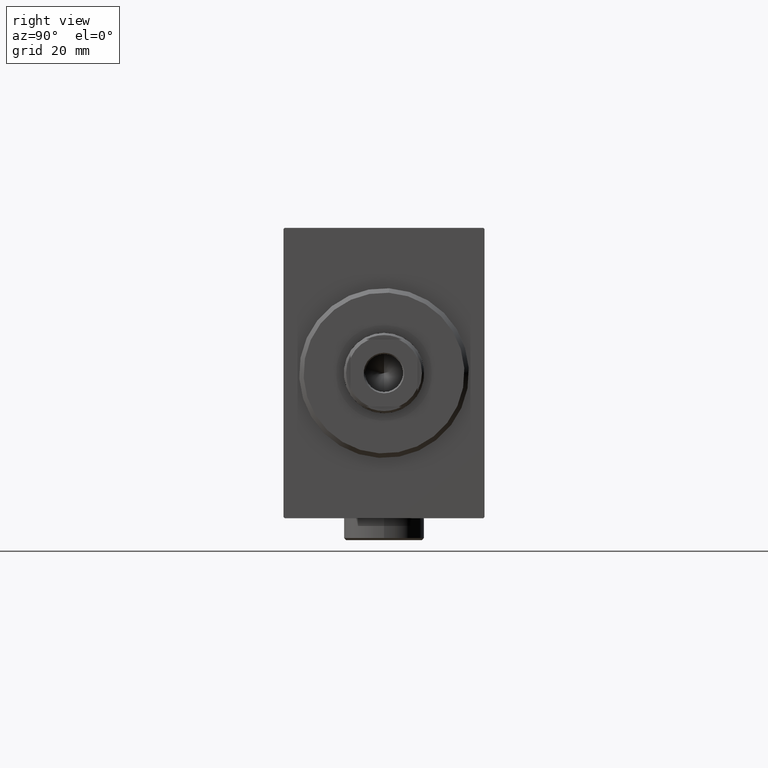
[diagram: clean part render]
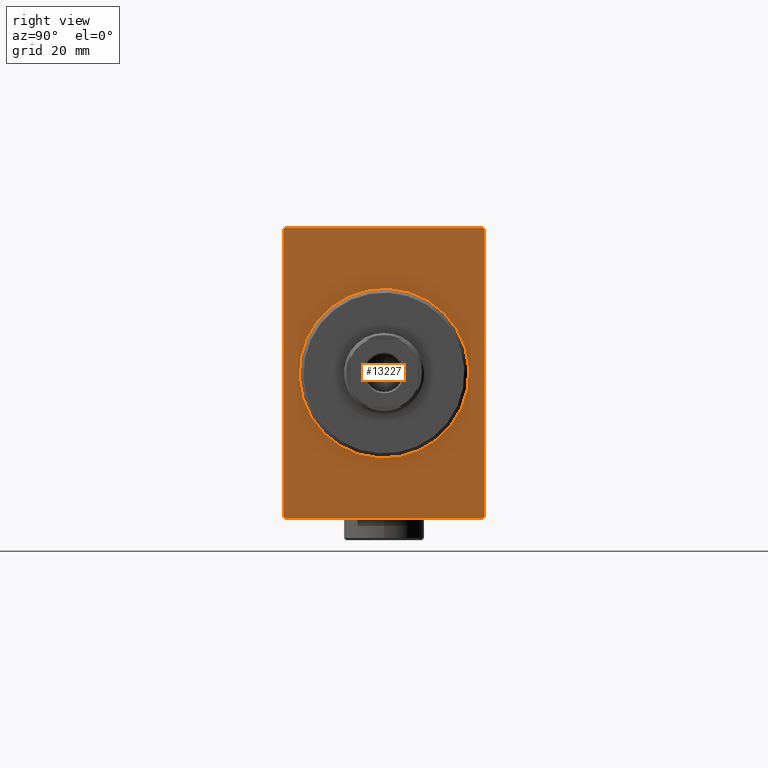
[diagram: same view with one face highlighted and labeled with its STEP entity id]
A machine part, right view. The second image highlights one B-rep face of the part: STEP entity #13227.
In plain terms, the highlighted planar face has unit normal (-1, -0, 0).
Its self-contained STEP definition (entity closure, byte-faithful):
#765 = LINE ( 'NONE', #7530, #23587 ) ;
#911 = DIRECTION ( 'NONE',  ( 0.000000000000000000, 0.000000000000000000, -1.000000000000000000 ) ) ;
#948 = VECTOR ( 'NONE', #27642, 1000.000000000000000 ) ;
#1082 = CARTESIAN_POINT ( 'NONE',  ( 0.000000000000000000, 22.20000000000000639, -32.50000000000000000 ) ) ;
#1437 = CARTESIAN_POINT ( 'NONE',  ( 0.000000000000000000, -22.49999999999999645, 32.20000000000001705 ) ) ;
#1765 = EDGE_CURVE ( 'NONE', #34851, #41429, #44118, .T. ) ;
#2129 = VECTOR ( 'NONE', #26406, 1000.000000000000000 ) ;
#2436 = VERTEX_POINT ( 'NONE', #28493 ) ;
#4612 = VERTEX_POINT ( 'NONE', #5872 ) ;
#4856 = CARTESIAN_POINT ( 'NONE',  ( 0.000000000000000000, 0.000000000000000000, 18.50000000000003197 ) ) ;
#5817 = EDGE_CURVE ( 'NONE', #15116, #4612, #9937, .T. ) ;
#5872 = CARTESIAN_POINT ( 'NONE',  ( 0.000000000000000000, 22.49999999999999645, 32.20000000000003126 ) ) ;
#5937 = CARTESIAN_POINT ( 'NONE',  ( 0.000000000000000000, -22.20000000000001350, -32.50000000000000000 ) ) ;
#6255 = ORIENTED_EDGE ( 'NONE', *, *, #31369, .T. ) ;
#7530 = CARTESIAN_POINT ( 'NONE',  ( 0.000000000000000000, 22.20000000000001350, 32.50000000000000711 ) ) ;
#7666 = FACE_OUTER_BOUND ( 'NONE', #32845, .T. ) ;
#7955 = DIRECTION ( 'NONE',  ( 1.000000000000000000, 0.000000000000000000, 0.000000000000000000 ) ) ;
#9937 = LINE ( 'NONE', #41015, #2129 ) ;
#10672 = DIRECTION ( 'NONE',  ( 0.000000000000000000, 0.000000000000000000, -1.000000000000000000 ) ) ;
#10782 = EDGE_CURVE ( 'NONE', #34284, #24033, #23819, .T. ) ;
#11052 = ORIENTED_EDGE ( 'NONE', *, *, #21683, .F. ) ;
#11157 = LINE ( 'NONE', #11592, #22563 ) ;
#11592 = CARTESIAN_POINT ( 'NONE',  ( 0.000000000000000000, -22.49999999999999645, 32.50000000000000000 ) ) ;
#13014 = DIRECTION ( 'NONE',  ( -0.000000000000000000, 0.7071067811865474617, 0.7071067811865474617 ) ) ;
#13227 = ADVANCED_FACE ( 'NONE', ( #41894, #7666 ), #21405, .F. ) ;
#13277 = CARTESIAN_POINT ( 'NONE',  ( 0.000000000000000000, -22.20000000000001350, -32.50000000000000000 ) ) ;
#13901 = CARTESIAN_POINT ( 'NONE',  ( 0.000000000000000000, -22.49999999999999645, -32.50000000000000000 ) ) ;
#14544 = DIRECTION ( 'NONE',  ( 0.000000000000000000, 0.000000000000000000, -1.000000000000000000 ) ) ;
#14840 = ORIENTED_EDGE ( 'NONE', *, *, #33202, .T. ) ;
#14891 = CIRCLE ( 'NONE', #20624, 18.50000000000003197 ) ;
#15116 = VERTEX_POINT ( 'NONE', #23190 ) ;
#16939 = ORIENTED_EDGE ( 'NONE', *, *, #24073, .F. ) ;
#18038 = CARTESIAN_POINT ( 'NONE',  ( 0.000000000000000000, 0.000000000000000000, 0.000000000000000000 ) ) ;
#19891 = DIRECTION ( 'NONE',  ( 0.000000000000000000, -1.000000000000000000, -1.541976423090495633E-16 ) ) ;
#20475 = DIRECTION ( 'NONE',  ( -0.000000000000000000, -0.7071067811865474617, 0.7071067811865474617 ) ) ;
#20624 = AXIS2_PLACEMENT_3D ( 'NONE', #24421, #7955, #10672 ) ;
#20948 = VERTEX_POINT ( 'NONE', #4856 ) ;
#20977 = DIRECTION ( 'NONE',  ( 0.000000000000000000, 0.000000000000000000, -1.000000000000000000 ) ) ;
#21078 = EDGE_CURVE ( 'NONE', #15116, #21475, #37861, .T. ) ;
#21405 = PLANE ( 'NONE',  #36845 ) ;
#21475 = VERTEX_POINT ( 'NONE', #1082 ) ;
#21642 = DIRECTION ( 'NONE',  ( 1.000000000000000000, 0.000000000000000000, 0.000000000000000000 ) ) ;
#21683 = EDGE_CURVE ( 'NONE', #34284, #41429, #11157, .T. ) ;
#22442 = CARTESIAN_POINT ( 'NONE',  ( 0.000000000000000000, -22.19999999999999929, 32.50000000000000000 ) ) ;
#22563 = VECTOR ( 'NONE', #14544, 1000.000000000000000 ) ;
#22746 = ORIENTED_EDGE ( 'NONE', *, *, #10782, .T. ) ;
#22934 = EDGE_CURVE ( 'NONE', #40922, #20948, #34867, .T. ) ;
#23190 = CARTESIAN_POINT ( 'NONE',  ( 0.000000000000000000, 22.50000000000000355, -32.20000000000001705 ) ) ;
#23587 = VECTOR ( 'NONE', #41979, 1000.000000000000000 ) ;
#23819 = LINE ( 'NONE', #43857, #25279 ) ;
#24033 = VERTEX_POINT ( 'NONE', #22442 ) ;
#24073 = EDGE_CURVE ( 'NONE', #2436, #24033, #42930, .T. ) ;
#24421 = CARTESIAN_POINT ( 'NONE',  ( 0.000000000000000000, 0.000000000000000000, 0.000000000000000000 ) ) ;
#25054 = ORIENTED_EDGE ( 'NONE', *, *, #22934, .T. ) ;
#25279 = VECTOR ( 'NONE', #13014, 1000.000000000000114 ) ;
#26071 = CARTESIAN_POINT ( 'NONE',  ( 0.000000000000000000, 2.265596578422607341E-15, -18.50000000000003197 ) ) ;
#26406 = DIRECTION ( 'NONE',  ( 0.000000000000000000, -1.067522139062650425E-16, 1.000000000000000000 ) ) ;
#27184 = ORIENTED_EDGE ( 'NONE', *, *, #21078, .T. ) ;
#27270 = DIRECTION ( 'NONE',  ( 0.000000000000000000, -0.7071067811865474617, -0.7071067811865474617 ) ) ;
#27642 = DIRECTION ( 'NONE',  ( 0.000000000000000000, 1.000000000000000000, 0.000000000000000000 ) ) ;
#27693 = VECTOR ( 'NONE', #19891, 1000.000000000000000 ) ;
#28294 = LINE ( 'NONE', #13901, #948 ) ;
#28493 = CARTESIAN_POINT ( 'NONE',  ( 0.000000000000000000, 22.20000000000001350, 32.50000000000000711 ) ) ;
#30180 = EDGE_LOOP ( 'NONE', ( #6255, #25054 ) ) ;
#31335 = CARTESIAN_POINT ( 'NONE',  ( 0.000000000000000000, 22.50000000000000355, -32.20000000000001705 ) ) ;
#31369 = EDGE_CURVE ( 'NONE', #20948, #40922, #14891, .T. ) ;
#31768 = DIRECTION ( 'NONE',  ( 1.000000000000000000, 0.000000000000000000, 0.000000000000000000 ) ) ;
#31804 = ORIENTED_EDGE ( 'NONE', *, *, #1765, .T. ) ;
#32809 = CARTESIAN_POINT ( 'NONE',  ( 0.000000000000000000, 22.49999999999999645, 32.50000000000000711 ) ) ;
#32845 = EDGE_LOOP ( 'NONE', ( #16939, #14840, #33877, #27184, #38439, #31804, #11052, #22746 ) ) ;
#33202 = EDGE_CURVE ( 'NONE', #2436, #4612, #765, .T. ) ;
#33877 = ORIENTED_EDGE ( 'NONE', *, *, #5817, .F. ) ;
#34284 = VERTEX_POINT ( 'NONE', #1437 ) ;
#34851 = VERTEX_POINT ( 'NONE', #5937 ) ;
#34867 = CIRCLE ( 'NONE', #44157, 18.50000000000003197 ) ;
#36325 = CARTESIAN_POINT ( 'NONE',  ( 0.000000000000000000, -22.49999999999999645, -32.20000000000001705 ) ) ;
#36845 = AXIS2_PLACEMENT_3D ( 'NONE', #18038, #31768, #911 ) ;
#37861 = LINE ( 'NONE', #31335, #39096 ) ;
#38439 = ORIENTED_EDGE ( 'NONE', *, *, #41884, .F. ) ;
#39096 = VECTOR ( 'NONE', #27270, 1000.000000000000114 ) ;
#40230 = VECTOR ( 'NONE', #20475, 1000.000000000000114 ) ;
#40922 = VERTEX_POINT ( 'NONE', #26071 ) ;
#41015 = CARTESIAN_POINT ( 'NONE',  ( 0.000000000000000000, 22.50000000000000355, -32.50000000000000000 ) ) ;
#41429 = VERTEX_POINT ( 'NONE', #36325 ) ;
#41884 = EDGE_CURVE ( 'NONE', #34851, #21475, #28294, .T. ) ;
#41894 = FACE_BOUND ( 'NONE', #30180, .T. ) ;
#41916 = CARTESIAN_POINT ( 'NONE',  ( 0.000000000000000000, 0.000000000000000000, 0.000000000000000000 ) ) ;
#41979 = DIRECTION ( 'NONE',  ( -0.000000000000000000, 0.7071067811865556774, -0.7071067811865393571 ) ) ;
#42930 = LINE ( 'NONE', #32809, #27693 ) ;
#43857 = CARTESIAN_POINT ( 'NONE',  ( 0.000000000000000000, -22.49999999999999645, 32.20000000000001705 ) ) ;
#44118 = LINE ( 'NONE', #13277, #40230 ) ;
#44157 = AXIS2_PLACEMENT_3D ( 'NONE', #41916, #21642, #20977 ) ;